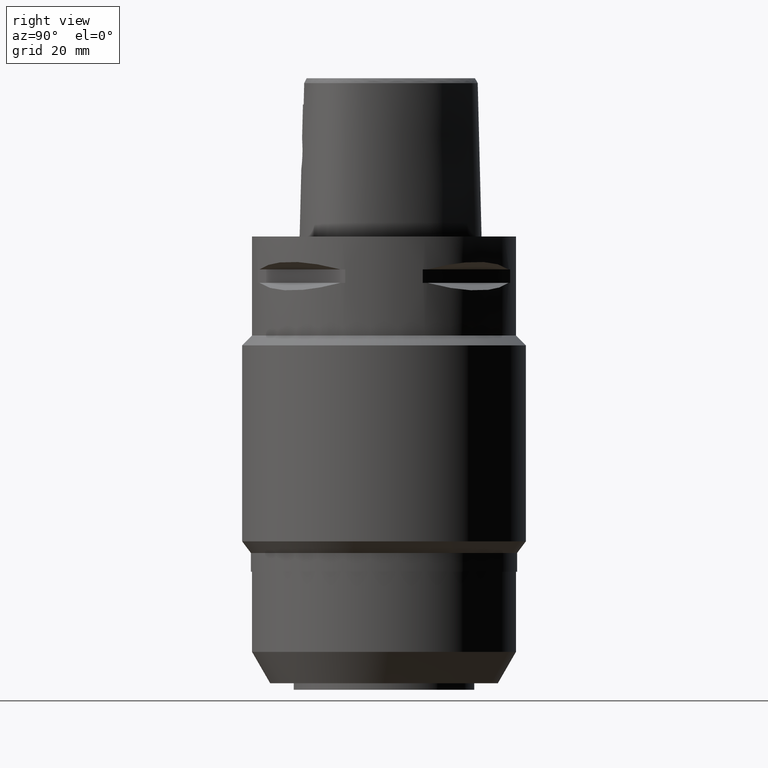
[diagram: clean part render]
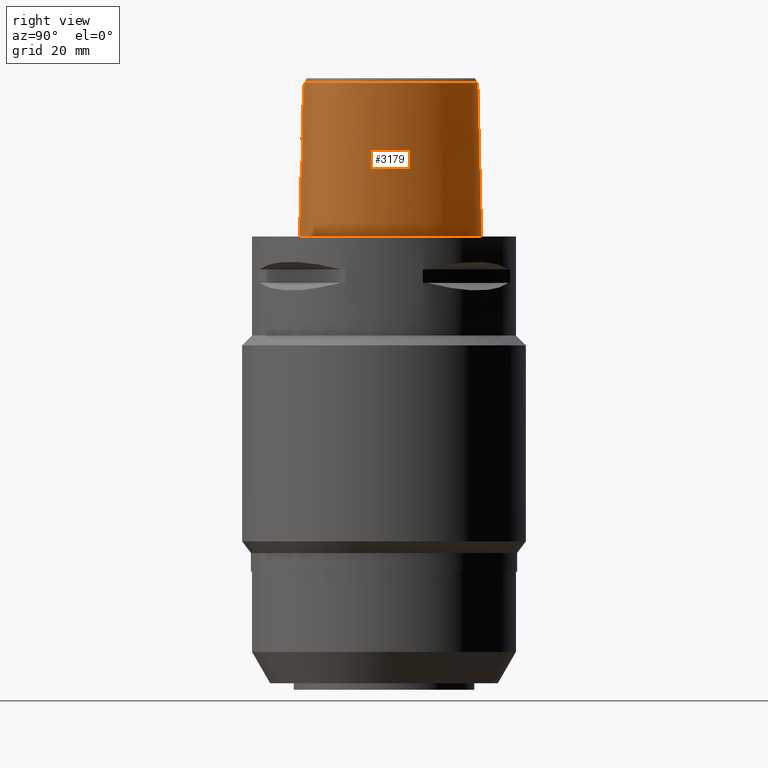
[diagram: same view with one face highlighted and labeled with its STEP entity id]
A machine part, right view. The second image highlights one B-rep face of the part: STEP entity #3179.
In plain terms, the highlighted face is a freeform B-spline surface patch.
Its self-contained STEP definition (entity closure, byte-faithful):
#128=CARTESIAN_POINT('',(4.472216720977E0,-2.420009030094E1,4.652069014669E1));
#138=CARTESIAN_POINT('',(-1.323779573891E-11,2.841206021535E1,
4.652071719451E1));
#139=CARTESIAN_POINT('',(4.606320550800E-1,2.841206021535E1,4.652071719450E1));
#140=CARTESIAN_POINT('',(1.380661234511E0,2.836415882113E1,4.652068984270E1));
#141=CARTESIAN_POINT('',(2.841928392838E0,2.813558522298E1,4.652071991649E1));
#142=CARTESIAN_POINT('',(4.379212462494E0,2.773188459247E1,4.652071691376E1));
#143=CARTESIAN_POINT('',(6.021193347643E0,2.712277677632E1,4.652072279629E1));
#144=CARTESIAN_POINT('',(7.745121863951E0,2.628580905133E1,4.652072119756E1));
#145=CARTESIAN_POINT('',(9.453334095115E0,2.526022578213E1,4.652071548014E1));
#146=CARTESIAN_POINT('',(1.115218831432E1,2.404757705861E1,4.652072256051E1));
#147=CARTESIAN_POINT('',(1.284762497769E1,2.263966633399E1,4.652071292840E1));
#148=CARTESIAN_POINT('',(1.457878499649E1,2.099117496969E1,4.652072192186E1));
#149=CARTESIAN_POINT('',(1.642496513174E1,1.897818064695E1,4.652070950767E1));
#150=CARTESIAN_POINT('',(1.838389967612E1,1.651252362122E1,4.652071863373E1));
#151=CARTESIAN_POINT('',(2.038138373447E1,1.356582907995E1,4.652071072856E1));
#152=CARTESIAN_POINT('',(2.219913620551E1,1.037308149740E1,4.652072885304E1));
#153=CARTESIAN_POINT('',(2.368910425822E1,7.205137602910E0,4.652068338079E1));
#154=CARTESIAN_POINT('',(2.477679801505E1,4.361948004330E0,4.652071793437E1));
#155=CARTESIAN_POINT('',(2.555632631803E1,1.808987916476E0,4.652071574378E1));
#156=CARTESIAN_POINT('',(2.609642259792E1,-5.182211070202E-1,4.652071692697E1));
#157=CARTESIAN_POINT('',(2.644234566520E1,-2.681904027850E0,4.652071528727E1));
#158=CARTESIAN_POINT('',(2.661791504798E1,-4.736597236572E0,4.652072550269E1));
#159=CARTESIAN_POINT('',(2.662750453330E1,-6.727739960607E0,4.652071329345E1));
#160=CARTESIAN_POINT('',(2.646454555243E1,-8.619795888693E0,4.652071982064E1));
#161=CARTESIAN_POINT('',(2.615135011606E1,-1.031274764686E1,4.652071488994E1));
#162=CARTESIAN_POINT('',(2.571382618326E1,-1.182334617178E1,4.652072306013E1));
#163=CARTESIAN_POINT('',(2.516843687090E1,-1.317519793209E1,4.652069750452E1));
#164=CARTESIAN_POINT('',(2.451679969454E1,-1.440546161007E1,4.652073241609E1));
#165=CARTESIAN_POINT('',(2.373267690902E1,-1.556901358081E1,4.652071101399E1));
#166=CARTESIAN_POINT('',(2.277691755398E1,-1.671393745988E1,4.652072345599E1));
#167=CARTESIAN_POINT('',(2.162413737285E1,-1.784124380320E1,4.652071835795E1));
#168=CARTESIAN_POINT('',(2.023609113199E1,-1.895517354433E1,4.652071727015E1));
#169=CARTESIAN_POINT('',(1.859922349447E1,-2.002678781799E1,4.652071743704E1));
#170=CARTESIAN_POINT('',(1.683385243259E1,-2.097263268987E1,4.652072005710E1));
#171=CARTESIAN_POINT('',(1.490857303377E1,-2.181978364797E1,4.652071534801E1));
#172=CARTESIAN_POINT('',(1.279383221296E1,-2.257333243552E1,4.652071921196E1));
#173=CARTESIAN_POINT('',(1.042815296110E1,-2.323755738648E1,4.652070562240E1));
#174=CARTESIAN_POINT('',(7.716474929645E0,-2.380436103408E1,4.652074652213E1));
#175=CARTESIAN_POINT('',(5.597009914483E0,-2.409241874690E1,4.652064867177E1));
#176=CARTESIAN_POINT('',(4.472216720977E0,-2.420009030094E1,4.652069014669E1));
#251=DIRECTION('',(1.388127457203E-9,-2.499239851702E-2,-9.996876412242E-1));
#252=VECTOR('',#251,1.045326522127E1);
#253=CARTESIAN_POINT('',(-1.451045074373E-8,-2.457504746727E1,
4.000000005214E1));
#254=LINE('',#253,#252);
#272=CARTESIAN_POINT('',(-1.566478732513E-12,-2.506378435149E1,2.045E1));
#277=DIRECTION('',(-5.393094615206E-13,-2.499051295404E-2,-9.996876883619E-1));
#278=VECTOR('',#277,2.045638876829E1);
#279=CARTESIAN_POINT('',(-1.566478732513E-12,-2.506378435149E1,2.045E1));
#280=LINE('',#279,#278);
#300=CARTESIAN_POINT('',(-1.259880274379E-11,-2.5575E1,9.040916163864E-14));
#301=CARTESIAN_POINT('',(1.261207447350E0,-2.5575E1,9.040916163864E-14));
#302=CARTESIAN_POINT('',(3.718179933075E0,-2.547857452489E1,
-4.195903793974E-14));
#303=CARTESIAN_POINT('',(7.240705837510E0,-2.507030802752E1,
1.124289033114E-14));
#304=CARTESIAN_POINT('',(1.050024558177E1,-2.443006583016E1,0.E0));
#305=CARTESIAN_POINT('',(1.341835861359E1,-2.360765640070E1,0.E0));
#306=CARTESIAN_POINT('',(1.597034105915E1,-2.265297043850E1,0.E0));
#307=CARTESIAN_POINT('',(1.817184763725E1,-2.160585265022E1,0.E0));
#308=CARTESIAN_POINT('',(2.005906641113E1,-2.049120242452E1,0.E0));
#309=CARTESIAN_POINT('',(2.165550347096E1,-1.933646032974E1,0.E0));
#310=CARTESIAN_POINT('',(2.301006974151E1,-1.814303779308E1,0.E0));
#311=CARTESIAN_POINT('',(2.414386041108E1,-1.692409573042E1,0.E0));
#312=CARTESIAN_POINT('',(2.509815608432E1,-1.566218093477E1,0.E0));
#313=CARTESIAN_POINT('',(2.589373479761E1,-1.433637151526E1,0.E0));
#314=CARTESIAN_POINT('',(2.654439279898E1,-1.292819265653E1,0.E0));
#315=CARTESIAN_POINT('',(2.707227082252E1,-1.138988530395E1,0.E0));
#316=CARTESIAN_POINT('',(2.747136657536E1,-9.693473818852E0,0.E0));
#317=CARTESIAN_POINT('',(2.772786675753E1,-7.791573008351E0,0.E0));
#318=CARTESIAN_POINT('',(2.781205187001E1,-5.676398996866E0,0.E0));
#319=CARTESIAN_POINT('',(2.769229699443E1,-3.320307071040E0,0.E0));
#320=CARTESIAN_POINT('',(2.732912117602E1,-7.093632411035E-1,0.E0));
#321=CARTESIAN_POINT('',(2.668151856095E1,2.153217594110E0,0.E0));
#322=CARTESIAN_POINT('',(2.571344251087E1,5.239638069469E0,0.E0));
#323=CARTESIAN_POINT('',(2.440280266561E1,8.489998082643E0,0.E0));
#324=CARTESIAN_POINT('',(2.276338936013E1,1.178954261108E1,0.E0));
#325=CARTESIAN_POINT('',(2.084918218612E1,1.499790412370E1,0.E0));
#326=CARTESIAN_POINT('',(1.875653894445E1,1.796004655102E1,0.E0));
#327=CARTESIAN_POINT('',(1.657816998336E1,2.058190727795E1,0.E0));
#328=CARTESIAN_POINT('',(1.439588030136E1,2.281748529486E1,0.E0));
#329=CARTESIAN_POINT('',(1.226799440244E1,2.466532793176E1,0.E0));
#330=CARTESIAN_POINT('',(1.022602620212E1,2.615357128313E1,0.E0));
#331=CARTESIAN_POINT('',(8.287455705675E0,2.731909373846E1,0.E0));
#332=CARTESIAN_POINT('',(6.454164190980E0,2.820374363513E1,0.E0));
#333=CARTESIAN_POINT('',(4.717863503287E0,2.884639976424E1,0.E0));
#334=CARTESIAN_POINT('',(3.069270244740E0,2.927787737342E1,1.043292361060E-14));
#335=CARTESIAN_POINT('',(1.501127257022E0,2.952296008063E1,
-3.893620098625E-14));
#336=CARTESIAN_POINT('',(4.932289073076E-1,2.957499999999E1,
8.389585322751E-14));
#337=CARTESIAN_POINT('',(3.246797305882E-11,2.957499999999E1,
8.389585322751E-14));
#342=CARTESIAN_POINT('',(3.246797305882E-11,2.957499999999E1,
8.389585322751E-14));
#379=CARTESIAN_POINT('',(-1.259880274379E-11,-2.5575E1,9.040916163864E-14));
#1086=CARTESIAN_POINT('',(-1.566478732513E-12,-2.506378435149E1,2.045E1));
#1087=CARTESIAN_POINT('',(3.954072385970E-1,-2.506378435149E1,2.045E1));
#1088=CARTESIAN_POINT('',(1.186753459267E0,-2.505127021271E1,2.055377441387E1));
#1089=CARTESIAN_POINT('',(2.293901026105E0,-2.499899038356E1,2.101029884895E1));
#1090=CARTESIAN_POINT('',(3.249199742156E0,-2.492423366302E1,2.174038340004E1));
#1091=CARTESIAN_POINT('',(3.983109891139E0,-2.484333493048E1,2.269399437273E1));
#1092=CARTESIAN_POINT('',(4.444902099457E0,-2.477340454867E1,2.380604644136E1));
#1093=CARTESIAN_POINT('',(4.602189725522E0,-2.472804812745E1,2.499792083744E1));
#1094=CARTESIAN_POINT('',(4.446334752733E0,-2.471346400510E1,2.618704469361E1));
#1095=CARTESIAN_POINT('',(3.988616765538E0,-2.472738510881E1,2.729584248229E1));
#1096=CARTESIAN_POINT('',(3.258671858173E0,-2.476043868878E1,2.825013255838E1));
#1097=CARTESIAN_POINT('',(2.303887962671E0,-2.479896037678E1,2.898443751551E1));
#1098=CARTESIAN_POINT('',(1.191549157684E0,-2.482886762172E1,2.944549741629E1));
#1099=CARTESIAN_POINT('',(3.970274391534E-1,-2.483629963748E1,2.955E1));
#1100=CARTESIAN_POINT('',(1.372734075393E-14,-2.483629963748E1,2.955E1));
#1105=CARTESIAN_POINT('',(4.602926386879E0,-2.435121850030E1,4.000000005215E1));
#1106=CARTESIAN_POINT('',(4.588866899356E0,-2.433440433283E1,4.072434907413E1));
#1107=CARTESIAN_POINT('',(4.559961035626E0,-2.430022594202E1,4.217314077646E1));
#1108=CARTESIAN_POINT('',(4.516394065040E0,-2.424985529238E1,4.434670381198E1));
#1109=CARTESIAN_POINT('',(4.487210999458E0,-2.421685509515E1,4.579599754735E1));
#1110=CARTESIAN_POINT('',(4.472216720977E0,-2.420009030094E1,4.652069014669E1));
#1115=DIRECTION('',(9.821751922522E-13,2.499051293976E-2,-9.996876883622E-1));
#1116=VECTOR('',#1115,4.653525069487E1);
#1117=CARTESIAN_POINT('',(-1.323779573891E-11,2.841206021535E1,
4.652071719451E1));
#1118=LINE('',#1117,#1116);
#1122=CARTESIAN_POINT('',(4.602926386879E0,-2.435121850030E1,4.000000005215E1));
#1123=CARTESIAN_POINT('',(4.092927945188E0,-2.440134254990E1,4.000000005215E1));
#1124=CARTESIAN_POINT('',(3.071957838276E0,-2.448406989328E1,3.999999998262E1));
#1125=CARTESIAN_POINT('',(1.536621703767E0,-2.455890147704E1,3.999999998262E1));
#1126=CARTESIAN_POINT('',(5.124223333400E-1,-2.457504746727E1,
4.000000005214E1));
#1127=CARTESIAN_POINT('',(-1.451045074373E-8,-2.457504746727E1,
4.000000005214E1));
#1132=CARTESIAN_POINT('',(-1.451045074373E-8,-2.457504746727E1,
4.000000005214E1));
#1567=VERTEX_POINT('',#128);
#1568=VERTEX_POINT('',#1105);
#1572=CARTESIAN_POINT('',(-1.323779573891E-11,2.841206021535E1,
4.652071719451E1));
#1573=VERTEX_POINT('',#1572);
#1574=VERTEX_POINT('',#342);
#1575=VERTEX_POINT('',#379);
#1576=VERTEX_POINT('',#1132);
#1577=CARTESIAN_POINT('',(1.372734075387E-14,-2.483629963748E1,2.955E1));
#1578=VERTEX_POINT('',#1577);
#1579=VERTEX_POINT('',#272);
#3059=CARTESIAN_POINT('',(-8.532294277691E-1,-2.559082453160E1,
-9.304145041088E-1));
#3060=CARTESIAN_POINT('',(-8.462047057563E-1,-2.518772799949E1,
1.519677023378E1));
#3061=CARTESIAN_POINT('',(-8.391799837434E-1,-2.478463146738E1,
3.132395497166E1));
#3062=CARTESIAN_POINT('',(-8.321552617306E-1,-2.438153493527E1,
4.745113970955E1));
#3063=CARTESIAN_POINT('',(-5.689009026247E-1,-2.559577917853E1,
-9.304145041088E-1));
#3064=CARTESIAN_POINT('',(-5.642169922685E-1,-2.519264563249E1,
1.519677023378E1));
#3065=CARTESIAN_POINT('',(-5.595330819124E-1,-2.478951208645E1,
3.132395497166E1));
#3066=CARTESIAN_POINT('',(-5.548491715562E-1,-2.438637854042E1,
4.745113970955E1));
#3067=CARTESIAN_POINT('',(2.393561154390E0,-2.562160365938E1,
-9.304145041088E-1));
#3068=CARTESIAN_POINT('',(2.373865159918E0,-2.521827241864E1,1.519677023378E1));
#3069=CARTESIAN_POINT('',(2.354169165445E0,-2.481494117791E1,3.132395497166E1));
#3070=CARTESIAN_POINT('',(2.334473170972E0,-2.441160993717E1,4.745113970955E1));
#3071=CARTESIAN_POINT('',(6.695047936598E0,-2.526858194689E1,
-9.304145041088E-1));
#3072=CARTESIAN_POINT('',(6.639625075215E0,-2.486795320083E1,1.519677023378E1));
#3073=CARTESIAN_POINT('',(6.584202213832E0,-2.446732445477E1,3.132395497166E1));
#3074=CARTESIAN_POINT('',(6.528779352449E0,-2.406669570871E1,4.745113970955E1));
#3075=CARTESIAN_POINT('',(1.174634101502E1,-2.415815461160E1,
-9.304145041088E-1));
#3076=CARTESIAN_POINT('',(1.164093423714E1,-2.376831842723E1,1.519677023378E1));
#3077=CARTESIAN_POINT('',(1.153552745926E1,-2.337848224285E1,3.132395497166E1));
#3078=CARTESIAN_POINT('',(1.143012068138E1,-2.298864605848E1,4.745113970955E1));
#3079=CARTESIAN_POINT('',(1.530623779625E1,-2.298697010251E1,
-9.304145041088E-1));
#3080=CARTESIAN_POINT('',(1.515935281755E1,-2.261055603400E1,1.519677023378E1));
#3081=CARTESIAN_POINT('',(1.501246783886E1,-2.223414196548E1,3.132395497166E1));
#3082=CARTESIAN_POINT('',(1.486558286016E1,-2.185772789697E1,4.745113970955E1));
#3083=CARTESIAN_POINT('',(1.856135208429E1,-2.147443746751E1,
-9.304145041088E-1));
#3084=CARTESIAN_POINT('',(1.836798846430E1,-2.111924011405E1,1.519677023378E1));
#3085=CARTESIAN_POINT('',(1.817462484432E1,-2.076404276059E1,3.132395497166E1));
#3086=CARTESIAN_POINT('',(1.798126122433E1,-2.040884540713E1,4.745113970955E1));
#3087=CARTESIAN_POINT('',(2.143542293290E1,-1.961750339186E1,
-9.304145041088E-1));
#3088=CARTESIAN_POINT('',(2.119046238578E1,-1.929498366203E1,1.519677023378E1));
#3089=CARTESIAN_POINT('',(2.094550183867E1,-1.897246393220E1,3.132395497166E1));
#3090=CARTESIAN_POINT('',(2.070054129156E1,-1.864994420237E1,4.745113970955E1));
#3091=CARTESIAN_POINT('',(2.344929528204E1,-1.778045351996E1,
-9.304145041088E-1));
#3092=CARTESIAN_POINT('',(2.315870204306E1,-1.749879693439E1,1.519677023378E1));
#3093=CARTESIAN_POINT('',(2.286810880407E1,-1.721714034881E1,3.132395497166E1));
#3094=CARTESIAN_POINT('',(2.257751556509E1,-1.693548376323E1,4.745113970955E1));
#3095=CARTESIAN_POINT('',(2.479336081504E1,-1.613554022492E1,
-9.304145041088E-1));
#3096=CARTESIAN_POINT('',(2.446791222658E1,-1.589630653461E1,1.519677023378E1));
#3097=CARTESIAN_POINT('',(2.414246363812E1,-1.565707284430E1,3.132395497166E1));
#3098=CARTESIAN_POINT('',(2.381701504965E1,-1.541783915400E1,4.745113970955E1));
#3099=CARTESIAN_POINT('',(2.565830880223E1,-1.481383149394E1,
-9.304145041088E-1));
#3100=CARTESIAN_POINT('',(2.530843713925E1,-1.461183299489E1,1.519677023378E1));
#3101=CARTESIAN_POINT('',(2.495856547628E1,-1.440983449585E1,3.132395497166E1));
#3102=CARTESIAN_POINT('',(2.460869381330E1,-1.420783599680E1,4.745113970955E1));
#3103=CARTESIAN_POINT('',(2.637046814603E1,-1.340391019847E1,
-9.304145041088E-1));
#3104=CARTESIAN_POINT('',(2.600056139960E1,-1.324168029995E1,1.519677023378E1));
#3105=CARTESIAN_POINT('',(2.563065465317E1,-1.307945040143E1,3.132395497166E1));
#3106=CARTESIAN_POINT('',(2.526074790673E1,-1.291722050290E1,4.745113970955E1));
#3107=CARTESIAN_POINT('',(2.712297208047E1,-1.141745865559E1,
-9.304145041088E-1));
#3108=CARTESIAN_POINT('',(2.673375369651E1,-1.130662581288E1,1.519677023378E1));
#3109=CARTESIAN_POINT('',(2.634453531254E1,-1.119579297017E1,3.132395497166E1));
#3110=CARTESIAN_POINT('',(2.595531692858E1,-1.108496012746E1,4.745113970955E1));
#3111=CARTESIAN_POINT('',(2.770696775971E1,-8.754869100920E0,
-9.304145041088E-1));
#3112=CARTESIAN_POINT('',(2.730517725763E1,-8.703986976637E0,1.519677023378E1));
#3113=CARTESIAN_POINT('',(2.690338675556E1,-8.653104852354E0,3.132395497166E1));
#3114=CARTESIAN_POINT('',(2.650159625349E1,-8.602222728071E0,4.745113970955E1));
#3115=CARTESIAN_POINT('',(2.787808443168E1,-5.337383714051E0,
-9.304145041088E-1));
#3116=CARTESIAN_POINT('',(2.747379250488E1,-5.347524337164E0,1.519677023378E1));
#3117=CARTESIAN_POINT('',(2.706950057809E1,-5.357664960278E0,3.132395497166E1));
#3118=CARTESIAN_POINT('',(2.666520865129E1,-5.367805583392E0,4.745113970955E1));
#3119=CARTESIAN_POINT('',(2.756041892308E1,-1.762105663659E0,
-9.304145041088E-1));
#3120=CARTESIAN_POINT('',(2.716099297873E1,-1.823107493570E0,1.519677023378E1));
#3121=CARTESIAN_POINT('',(2.676156703438E1,-1.884109323480E0,3.132395497166E1));
#3122=CARTESIAN_POINT('',(2.636214109003E1,-1.945111153390E0,4.745113970955E1));
#3123=CARTESIAN_POINT('',(2.679474625840E1,1.906447387508E0,
-9.304145041088E-1));
#3124=CARTESIAN_POINT('',(2.640443225315E1,1.802817670701E0,1.519677023378E1));
#3125=CARTESIAN_POINT('',(2.601411824790E1,1.699187953894E0,3.132395497166E1));
#3126=CARTESIAN_POINT('',(2.562380424265E1,1.595558237087E0,4.745113970955E1));
#3127=CARTESIAN_POINT('',(2.523075706246E1,6.836210430825E0,
-9.304145041088E-1));
#3128=CARTESIAN_POINT('',(2.485610464416E1,6.683875463183E0,1.519677023378E1));
#3129=CARTESIAN_POINT('',(2.448145222586E1,6.531540495540E0,3.132395497166E1));
#3130=CARTESIAN_POINT('',(2.410679980756E1,6.379205527897E0,4.745113970955E1));
#3131=CARTESIAN_POINT('',(2.235908247827E1,1.290902243085E1,
-9.304145041088E-1));
#3132=CARTESIAN_POINT('',(2.200846692134E1,1.270659196276E1,1.519677023378E1));
#3133=CARTESIAN_POINT('',(2.165785136442E1,1.250416149466E1,3.132395497166E1));
#3134=CARTESIAN_POINT('',(2.130723580749E1,1.230173102657E1,4.745113970955E1));
#3135=CARTESIAN_POINT('',(1.777103258681E1,1.953703864490E1,
-9.304145041088E-1));
#3136=CARTESIAN_POINT('',(1.745811261828E1,1.927961879983E1,1.519677023378E1));
#3137=CARTESIAN_POINT('',(1.714519264976E1,1.902219895476E1,3.132395497166E1));
#3138=CARTESIAN_POINT('',(1.683227268124E1,1.876477910969E1,4.745113970955E1));
#3139=CARTESIAN_POINT('',(1.323332856338E1,2.406149249955E1,
-9.304145041088E-1));
#3140=CARTESIAN_POINT('',(1.296695409272E1,2.375598709059E1,1.519677023378E1));
#3141=CARTESIAN_POINT('',(1.270057962206E1,2.345048168162E1,3.132395497166E1));
#3142=CARTESIAN_POINT('',(1.243420515140E1,2.314497627265E1,4.745113970955E1));
#3143=CARTESIAN_POINT('',(9.316733117624E0,2.681182150698E1,
-9.304145041088E-1));
#3144=CARTESIAN_POINT('',(9.105791460106E0,2.646675913597E1,1.519677023378E1));
#3145=CARTESIAN_POINT('',(8.894849802588E0,2.612169676496E1,3.132395497166E1));
#3146=CARTESIAN_POINT('',(8.683908145070E0,2.577663439395E1,4.745113970955E1));
#3147=CARTESIAN_POINT('',(6.271543170778E0,2.837237220585E1,
-9.304145041088E-1));
#3148=CARTESIAN_POINT('',(6.114741920359E0,2.799897532527E1,1.519677023378E1));
#3149=CARTESIAN_POINT('',(5.957940669941E0,2.762557844469E1,3.132395497166E1));
#3150=CARTESIAN_POINT('',(5.801139419522E0,2.725218156410E1,4.745113970955E1));
#3151=CARTESIAN_POINT('',(3.154109046652E0,2.936302093442E1,
-9.304145041088E-1));
#3152=CARTESIAN_POINT('',(3.067023396202E0,2.896669973783E1,1.519677023378E1));
#3153=CARTESIAN_POINT('',(2.979937745751E0,2.857037854125E1,3.132395497166E1));
#3154=CARTESIAN_POINT('',(2.892852095301E0,2.817405734466E1,4.745113970955E1));
#3155=CARTESIAN_POINT('',(7.484115208101E-1,2.963215901985E1,
-9.304145041088E-1));
#3156=CARTESIAN_POINT('',(7.265635655206E-1,2.922802202565E1,1.519677023378E1));
#3157=CARTESIAN_POINT('',(7.047156102311E-1,2.882388503145E1,3.132395497166E1));
#3158=CARTESIAN_POINT('',(6.828676549415E-1,2.841974803724E1,4.745113970955E1));
#3159=CARTESIAN_POINT('',(-6.060951003834E-1,2.958848805193E1,
-9.304145041088E-1));
#3160=CARTESIAN_POINT('',(-5.886350994741E-1,2.918561926711E1,
1.519677023378E1));
#3161=CARTESIAN_POINT('',(-5.711750985648E-1,2.878275048230E1,
3.132395497166E1));
#3162=CARTESIAN_POINT('',(-5.537150976554E-1,2.837988169748E1,
4.745113970955E1));
#3163=CARTESIAN_POINT('',(-9.090099845326E-1,2.956867551665E1,
-9.304145041088E-1));
#3164=CARTESIAN_POINT('',(-8.826521029265E-1,2.916640541112E1,
1.519677023378E1));
#3165=CARTESIAN_POINT('',(-8.562942213204E-1,2.876413530560E1,
3.132395497166E1));
#3166=CARTESIAN_POINT('',(-8.299363397144E-1,2.836186520007E1,
4.745113970955E1));
#3167=B_SPLINE_SURFACE_WITH_KNOTS('',3,3,((#3059,#3060,#3061,#3062),(#3063,
#3064,#3065,#3066),(#3067,#3068,#3069,#3070),(#3071,#3072,#3073,#3074),(#3075,
#3076,#3077,#3078),(#3079,#3080,#3081,#3082),(#3083,#3084,#3085,#3086),(#3087,
#3088,#3089,#3090),(#3091,#3092,#3093,#3094),(#3095,#3096,#3097,#3098),(#3099,
#3100,#3101,#3102),(#3103,#3104,#3105,#3106),(#3107,#3108,#3109,#3110),(#3111,
#3112,#3113,#3114),(#3115,#3116,#3117,#3118),(#3119,#3120,#3121,#3122),(#3123,
#3124,#3125,#3126),(#3127,#3128,#3129,#3130),(#3131,#3132,#3133,#3134),(#3135,
#3136,#3137,#3138),(#3139,#3140,#3141,#3142),(#3143,#3144,#3145,#3146),(#3147,
#3148,#3149,#3150),(#3151,#3152,#3153,#3154),(#3155,#3156,#3157,#3158),(#3159,
#3160,#3161,#3162),(#3163,#3164,#3165,#3166)),.UNSPECIFIED.,.F.,.F.,.F.,(4,1,1,
1,1,1,1,1,1,1,1,1,1,1,1,1,1,1,1,1,1,1,1,1,4),(4,4),(-8.851417483044E-3,0.E0,
8.333333333341E-2,1.250000000001E-1,1.666666666667E-1,2.083333333333E-1,2.5E-1,
2.916666666667E-1,3.125E-1,3.333333333332E-1,3.541666666666E-1,
3.749999999999E-1,4.166666666666E-1,4.583333333332E-1,4.999999999998E-1,
5.416666666665E-1,5.833333333331E-1,6.666666666665E-1,7.499999999997E-1,
8.333333333330E-1,8.749999999996E-1,9.166666666663E-1,9.583333333329E-1,1.E0,
1.012009199036E0),(4.657505461164E-9,9.999997624673E-1),.UNSPECIFIED.);
#3168=ORIENTED_EDGE('',*,*,#2480,.F.);
#3169=ORIENTED_EDGE('',*,*,#2464,.F.);
#3170=ORIENTED_EDGE('',*,*,#3051,.T.);
#3171=ORIENTED_EDGE('',*,*,#2460,.F.);
#3173=ORIENTED_EDGE('',*,*,#3172,.F.);
#3174=ORIENTED_EDGE('',*,*,#1761,.T.);
#3175=ORIENTED_EDGE('',*,*,#2053,.F.);
#3176=ORIENTED_EDGE('',*,*,#2454,.T.);
#3177=EDGE_LOOP('',(#3168,#3169,#3170,#3171,#3173,#3174,#3175,#3176));
#3178=FACE_OUTER_BOUND('',#3177,.F.);
#177=B_SPLINE_CURVE_WITH_KNOTS('',3,(#138,#139,#140,#141,#142,#143,#144,#145,
#146,#147,#148,#149,#150,#151,#152,#153,#154,#155,#156,#157,#158,#159,#160,#161,
#162,#163,#164,#165,#166,#167,#168,#169,#170,#171,#172,#173,#174,#175,#176),
.UNSPECIFIED.,.F.,.F.,(4,1,1,1,1,1,1,1,1,1,1,1,1,1,1,1,1,1,1,1,1,1,1,1,1,1,1,1,
1,1,1,1,1,1,1,1,4),(0.E0,2.777777777778E-2,5.555555555556E-2,8.333333333333E-2,
1.111111111111E-1,1.388888888889E-1,1.666666666667E-1,1.944444444444E-1,
2.222222222222E-1,2.5E-1,2.777777777778E-1,3.055555555556E-1,3.333333333333E-1,
3.611111111111E-1,3.888888888889E-1,4.166666666667E-1,4.444444444444E-1,
4.722222222222E-1,5.E-1,5.277777777778E-1,5.555555555556E-1,5.833333333333E-1,
6.111111111111E-1,6.388888888889E-1,6.666666666667E-1,6.944444444444E-1,
7.222222222222E-1,7.5E-1,7.777777777778E-1,8.055555555556E-1,8.333333333333E-1,
8.611111111111E-1,8.888888888889E-1,9.166666666667E-1,9.444444444444E-1,
9.722222222222E-1,1.E0),.UNSPECIFIED.);
#338=B_SPLINE_CURVE_WITH_KNOTS('',3,(#300,#301,#302,#303,#304,#305,#306,#307,
#308,#309,#310,#311,#312,#313,#314,#315,#316,#317,#318,#319,#320,#321,#322,#323,
#324,#325,#326,#327,#328,#329,#330,#331,#332,#333,#334,#335,#336,#337),
.UNSPECIFIED.,.F.,.F.,(4,1,1,1,1,1,1,1,1,1,1,1,1,1,1,1,1,1,1,1,1,1,1,1,1,1,1,1,
1,1,1,1,1,1,1,4),(0.E0,2.857142857143E-2,5.714285714286E-2,8.571428571429E-2,
1.142857142857E-1,1.428571428571E-1,1.714285714286E-1,2.E-1,2.285714285714E-1,
2.571428571429E-1,2.857142857143E-1,3.142857142857E-1,3.428571428571E-1,
3.714285714286E-1,4.E-1,4.285714285714E-1,4.571428571429E-1,4.857142857143E-1,
5.142857142857E-1,5.428571428571E-1,5.714285714286E-1,6.E-1,6.285714285714E-1,
6.571428571429E-1,6.857142857143E-1,7.142857142857E-1,7.428571428571E-1,
7.714285714286E-1,8.E-1,8.285714285714E-1,8.571428571429E-1,8.857142857143E-1,
9.142857142857E-1,9.428571428571E-1,9.714285714286E-1,1.E0),.UNSPECIFIED.);
#1101=B_SPLINE_CURVE_WITH_KNOTS('',3,(#1086,#1087,#1088,#1089,#1090,#1091,#1092,
#1093,#1094,#1095,#1096,#1097,#1098,#1099,#1100),.UNSPECIFIED.,.F.,.F.,(4,1,1,1,
1,1,1,1,1,1,1,1,4),(0.E0,8.333333333333E-2,1.666666666667E-1,2.5E-1,
3.333333333333E-1,4.166666666667E-1,5.E-1,5.833333333333E-1,6.666666666667E-1,
7.5E-1,8.333333333333E-1,9.166666666667E-1,1.E0),.UNSPECIFIED.);
#1111=B_SPLINE_CURVE_WITH_KNOTS('',3,(#1105,#1106,#1107,#1108,#1109,#1110),
.UNSPECIFIED.,.F.,.F.,(4,1,1,4),(0.E0,3.333333333333E-1,6.666666666667E-1,1.E0),
.UNSPECIFIED.);
#1128=B_SPLINE_CURVE_WITH_KNOTS('',3,(#1122,#1123,#1124,#1125,#1126,#1127),
.UNSPECIFIED.,.F.,.F.,(4,1,1,4),(0.E0,3.333333333333E-1,6.666666666667E-1,1.E0),
.UNSPECIFIED.);
#1761=EDGE_CURVE('',#1568,#1567,#1111,.T.);
#2053=EDGE_CURVE('',#1573,#1567,#177,.T.);
#2454=EDGE_CURVE('',#1573,#1574,#1118,.T.);
#2460=EDGE_CURVE('',#1576,#1578,#254,.T.);
#2464=EDGE_CURVE('',#1579,#1575,#280,.T.);
#2480=EDGE_CURVE('',#1575,#1574,#338,.T.);
#3051=EDGE_CURVE('',#1579,#1578,#1101,.T.);
#3172=EDGE_CURVE('',#1568,#1576,#1128,.T.);
#3179=ADVANCED_FACE('',(#3178),#3167,.T.);